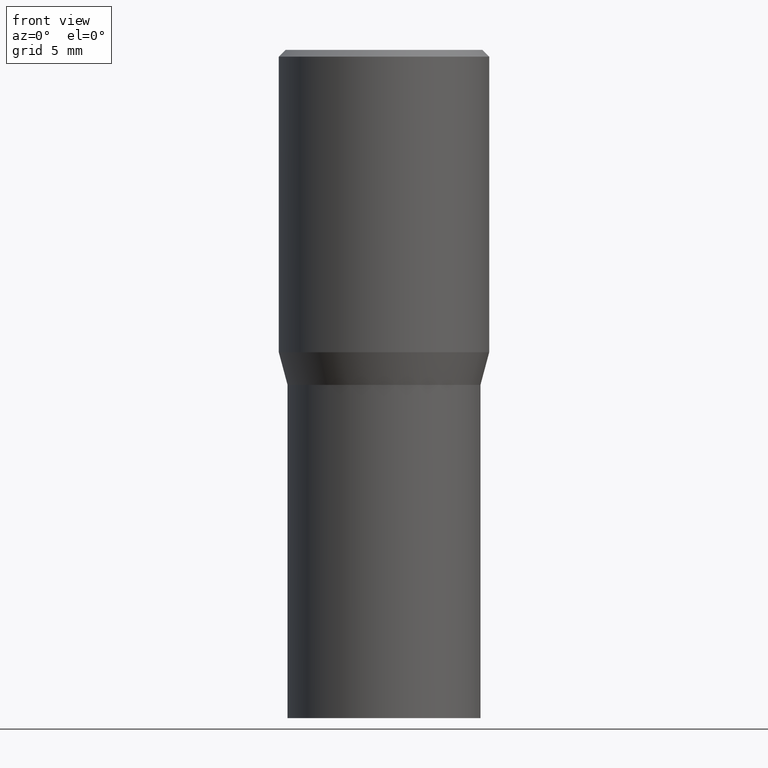
[diagram: clean part render]
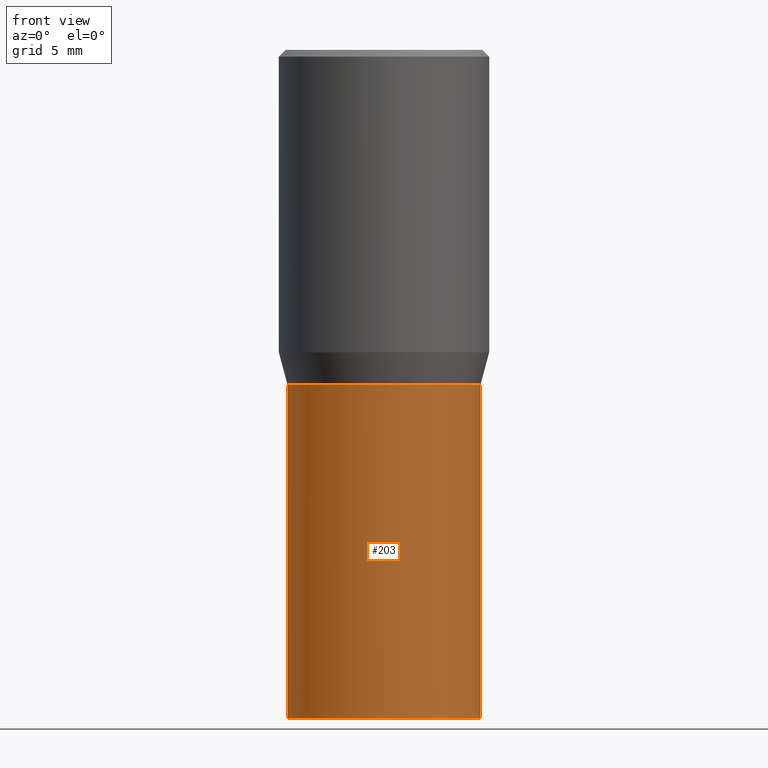
[diagram: same view with one face highlighted and labeled with its STEP entity id]
A machine part, front view. The second image highlights one B-rep face of the part: STEP entity #203.
In plain terms, the highlighted cylindrical surface (partial cylindrical patch) has radius 5.5004 mm, axis along (-0, 0, 1).
Its self-contained STEP definition (entity closure, byte-faithful):
#3 = DIRECTION ( 'NONE',  ( 1.000000000000000000, -6.982962677686266711E-15, 4.876176775795935793E-29 ) ) ;
#12 = DIRECTION ( 'NONE',  ( -2.445468806185136877E-29, 3.491481338843145188E-15, 1.000000000000000000 ) ) ;
#44 = CARTESIAN_POINT ( 'NONE',  ( 3.668203209277704895E-29, -5.237222008264718177E-15, -1.500000000000000222 ) ) ;
#79 = VERTEX_POINT ( 'NONE', #170 ) ;
#85 = DIRECTION ( 'NONE',  ( 1.000000000000000000, -6.982962677686266711E-15, 0.000000000000000000 ) ) ;
#125 = EDGE_CURVE ( 'NONE', #146, #155, #415, .T. ) ;
#142 = DIRECTION ( 'NONE',  ( 1.000000000000000000, -6.982962677686264344E-15, 0.000000000000000000 ) ) ;
#146 = VERTEX_POINT ( 'NONE', #180 ) ;
#151 = AXIS2_PLACEMENT_3D ( 'NONE', #396, #319, #3 ) ;
#154 = LINE ( 'NONE', #446, #457 ) ;
#155 = VERTEX_POINT ( 'NONE', #403 ) ;
#158 = ORIENTED_EDGE ( 'NONE', *, *, #242, .F. ) ;
#170 = CARTESIAN_POINT ( 'NONE',  ( 0.2165500000000000203, -4.137754534663007109E-15, -0.7520000000000001128 ) ) ;
#180 = CARTESIAN_POINT ( 'NONE',  ( -0.2165500000000000203, -2.392727693248884740E-15, -1.500000000000000222 ) ) ;
#190 = ORIENTED_EDGE ( 'NONE', *, *, #298, .F. ) ;
#203 = ADVANCED_FACE ( 'NONE', ( #466 ), #248, .T. ) ;
#220 = CARTESIAN_POINT ( 'NONE',  ( -0.2165500000000000203, -2.392727693248884740E-15, -0.7520000000000001128 ) ) ;
#229 = AXIS2_PLACEMENT_3D ( 'NONE', #44, #358, #142 ) ;
#231 = DIRECTION ( 'NONE',  ( -2.445468806185136877E-29, 3.491481338843145188E-15, 1.000000000000000000 ) ) ;
#242 = EDGE_CURVE ( 'NONE', #252, #79, #247, .T. ) ;
#247 = CIRCLE ( 'NONE', #336, 0.2165500000000000203 ) ;
#248 = CYLINDRICAL_SURFACE ( 'NONE', #151, 0.2165500000000000203 ) ;
#252 = VERTEX_POINT ( 'NONE', #220 ) ;
#258 = CARTESIAN_POINT ( 'NONE',  ( 1.838992542251222813E-29, -2.625593966810045497E-15, -0.7520000000000001128 ) ) ;
#270 = LINE ( 'NONE', #274, #433 ) ;
#274 = CARTESIAN_POINT ( 'NONE',  ( 0.2165500000000000203, -1.512160567852961217E-15, 1.055936080798610036E-29 ) ) ;
#298 = EDGE_CURVE ( 'NONE', #146, #252, #154, .T. ) ;
#319 = DIRECTION ( 'NONE',  ( -2.445468806185136597E-29, 3.491481338843145583E-15, 1.000000000000000000 ) ) ;
#335 = ORIENTED_EDGE ( 'NONE', *, *, #364, .T. ) ;
#336 = AXIS2_PLACEMENT_3D ( 'NONE', #258, #367, #85 ) ;
#358 = DIRECTION ( 'NONE',  ( -2.445468806185136597E-29, 3.491481338843145583E-15, 1.000000000000000000 ) ) ;
#364 = EDGE_CURVE ( 'NONE', #155, #79, #270, .T. ) ;
#367 = DIRECTION ( 'NONE',  ( -2.445468806185136597E-29, 3.491481338843145583E-15, 1.000000000000000000 ) ) ;
#396 = CARTESIAN_POINT ( 'NONE',  ( 0.000000000000000000, 0.000000000000000000, 0.000000000000000000 ) ) ;
#403 = CARTESIAN_POINT ( 'NONE',  ( 0.2165500000000000203, -6.749382576117678999E-15, -1.500000000000000222 ) ) ;
#415 = CIRCLE ( 'NONE', #229, 0.2165500000000000203 ) ;
#431 = ORIENTED_EDGE ( 'NONE', *, *, #125, .T. ) ;
#433 = VECTOR ( 'NONE', #231, 39.37007874015748143 ) ;
#435 = EDGE_LOOP ( 'NONE', ( #190, #431, #335, #158 ) ) ;
#446 = CARTESIAN_POINT ( 'NONE',  ( -0.2165500000000000203, 1.538680294288497096E-15, -1.065195393794699923E-29 ) ) ;
#457 = VECTOR ( 'NONE', #12, 39.37007874015748143 ) ;
#466 = FACE_OUTER_BOUND ( 'NONE', #435, .T. ) ;